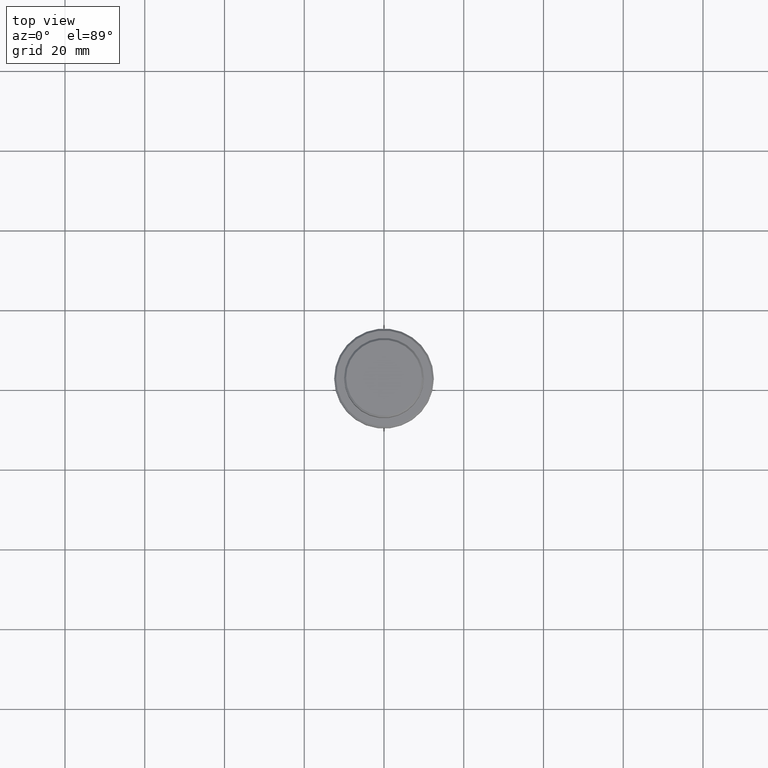
[diagram: clean part render]
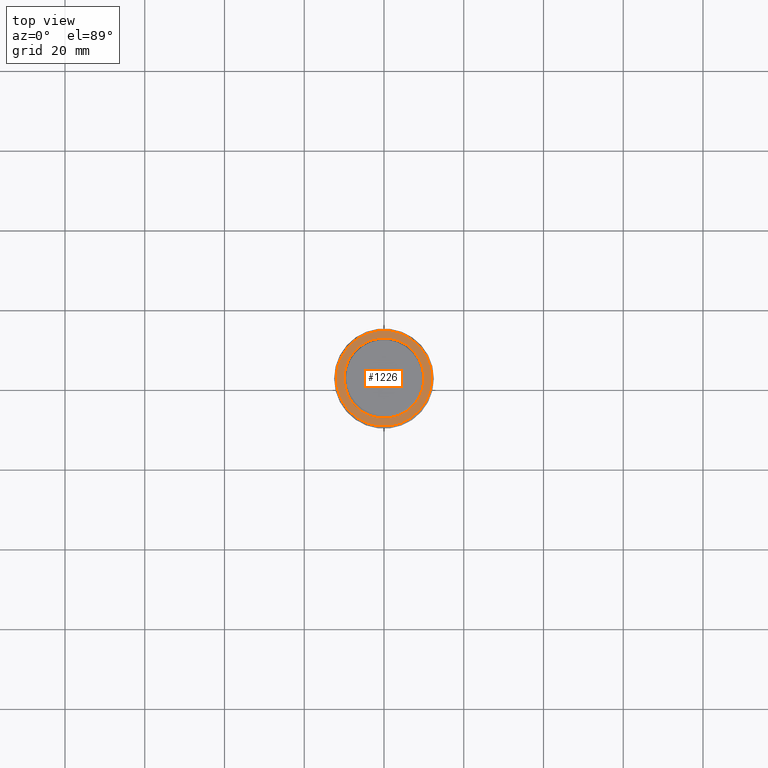
[diagram: same view with one face highlighted and labeled with its STEP entity id]
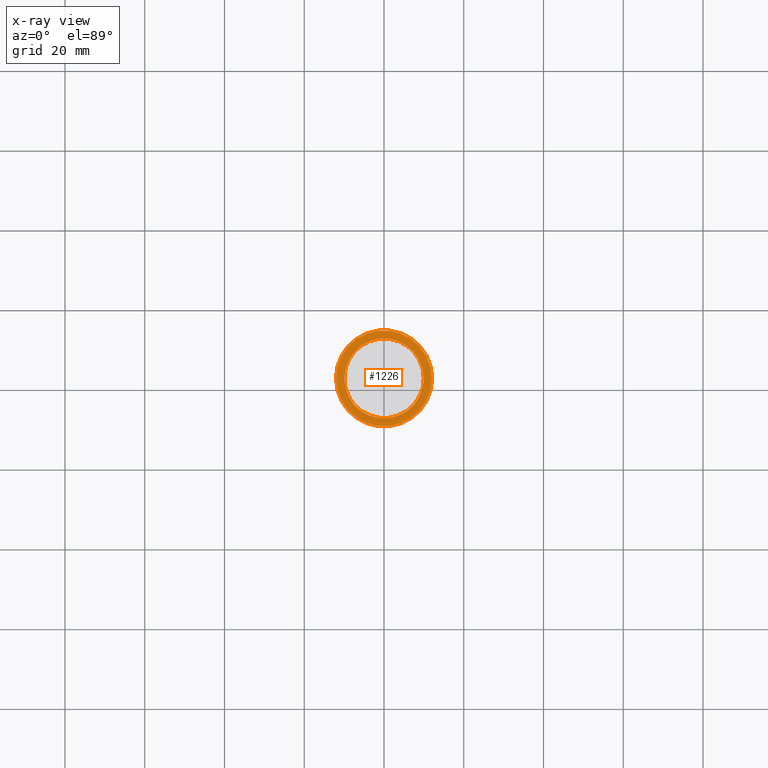
[diagram: x-ray of the same camera — body ghosted, the highlighted face saturated]
A machine part, top view. The second image highlights one B-rep face of the part: STEP entity #1226.
The next image is the same camera in x-ray: the body ghosted, the highlighted face saturated — about 0% of this face is hidden behind the body in this view.
In plain terms, the highlighted planar face has unit normal (0, -0, 1).
Its self-contained STEP definition (entity closure, byte-faithful):
#16 = VERTEX_POINT ( 'NONE', #209 ) ;
#21 = EDGE_LOOP ( 'NONE', ( #809, #303 ) ) ;
#54 = AXIS2_PLACEMENT_3D ( 'NONE', #1151, #785, #360 ) ;
#75 = CARTESIAN_POINT ( 'NONE',  ( -9.999999999999994671, 1.224646799147352665E-15, -9.000000000000001776 ) ) ;
#142 = CARTESIAN_POINT ( 'NONE',  ( 0.000000000000000000, 0.000000000000000000, -9.000000000000001776 ) ) ;
#150 = VERTEX_POINT ( 'NONE', #75 ) ;
#161 = DIRECTION ( 'NONE',  ( -0.000000000000000000, -0.000000000000000000, 1.000000000000000000 ) ) ;
#190 = CARTESIAN_POINT ( 'NONE',  ( 0.000000000000000000, 0.000000000000000000, -9.000000000000001776 ) ) ;
#209 = CARTESIAN_POINT ( 'NONE',  ( 12.00000000000001066, 1.500192328955508326E-15, -9.000000000000001776 ) ) ;
#303 = ORIENTED_EDGE ( 'NONE', *, *, #898, .T. ) ;
#360 = DIRECTION ( 'NONE',  ( 1.000000000000000000, 0.000000000000000000, 0.000000000000000000 ) ) ;
#395 = CARTESIAN_POINT ( 'NONE',  ( -12.00000000000001066, 0.000000000000000000, -9.000000000000001776 ) ) ;
#499 = AXIS2_PLACEMENT_3D ( 'NONE', #142, #1133, #1127 ) ;
#536 = FACE_BOUND ( 'NONE', #21, .T. ) ;
#598 = AXIS2_PLACEMENT_3D ( 'NONE', #998, #983, #1405 ) ;
#643 = ORIENTED_EDGE ( 'NONE', *, *, #731, .T. ) ;
#731 = EDGE_CURVE ( 'NONE', #16, #1388, #864, .T. ) ;
#771 = DIRECTION ( 'NONE',  ( 0.000000000000000000, -0.000000000000000000, 1.000000000000000000 ) ) ;
#773 = CARTESIAN_POINT ( 'NONE',  ( 9.999999999999994671, 0.000000000000000000, -9.000000000000001776 ) ) ;
#785 = DIRECTION ( 'NONE',  ( 0.000000000000000000, 0.000000000000000000, -1.000000000000000000 ) ) ;
#786 = VERTEX_POINT ( 'NONE', #773 ) ;
#809 = ORIENTED_EDGE ( 'NONE', *, *, #964, .T. ) ;
#862 = CARTESIAN_POINT ( 'NONE',  ( 0.000000000000000000, 9.499999999999994671, -9.000000000000001776 ) ) ;
#864 = CIRCLE ( 'NONE', #598, 12.00000000000001066 ) ;
#882 = PLANE ( 'NONE',  #1354 ) ;
#898 = EDGE_CURVE ( 'NONE', #150, #786, #1000, .T. ) ;
#928 = EDGE_LOOP ( 'NONE', ( #1317, #643 ) ) ;
#954 = CIRCLE ( 'NONE', #499, 9.999999999999994671 ) ;
#964 = EDGE_CURVE ( 'NONE', #786, #150, #954, .T. ) ;
#983 = DIRECTION ( 'NONE',  ( -0.000000000000000000, -0.000000000000000000, 1.000000000000000000 ) ) ;
#984 = CIRCLE ( 'NONE', #1123, 12.00000000000001066 ) ;
#998 = CARTESIAN_POINT ( 'NONE',  ( 0.000000000000000000, 0.000000000000000000, -9.000000000000001776 ) ) ;
#1000 = CIRCLE ( 'NONE', #54, 9.999999999999994671 ) ;
#1046 = DIRECTION ( 'NONE',  ( 1.000000000000000000, 0.000000000000000000, 0.000000000000000000 ) ) ;
#1102 = FACE_OUTER_BOUND ( 'NONE', #928, .T. ) ;
#1112 = EDGE_CURVE ( 'NONE', #1388, #16, #984, .T. ) ;
#1123 = AXIS2_PLACEMENT_3D ( 'NONE', #190, #161, #1046 ) ;
#1127 = DIRECTION ( 'NONE',  ( 1.000000000000000000, 0.000000000000000000, 0.000000000000000000 ) ) ;
#1133 = DIRECTION ( 'NONE',  ( 0.000000000000000000, 0.000000000000000000, -1.000000000000000000 ) ) ;
#1151 = CARTESIAN_POINT ( 'NONE',  ( 0.000000000000000000, 0.000000000000000000, -9.000000000000001776 ) ) ;
#1211 = DIRECTION ( 'NONE',  ( 1.000000000000000000, 0.000000000000000000, 0.000000000000000000 ) ) ;
#1226 = ADVANCED_FACE ( 'NONE', ( #1102, #536 ), #882, .T. ) ;
#1317 = ORIENTED_EDGE ( 'NONE', *, *, #1112, .T. ) ;
#1354 = AXIS2_PLACEMENT_3D ( 'NONE', #862, #771, #1211 ) ;
#1388 = VERTEX_POINT ( 'NONE', #395 ) ;
#1405 = DIRECTION ( 'NONE',  ( 1.000000000000000000, 0.000000000000000000, 0.000000000000000000 ) ) ;